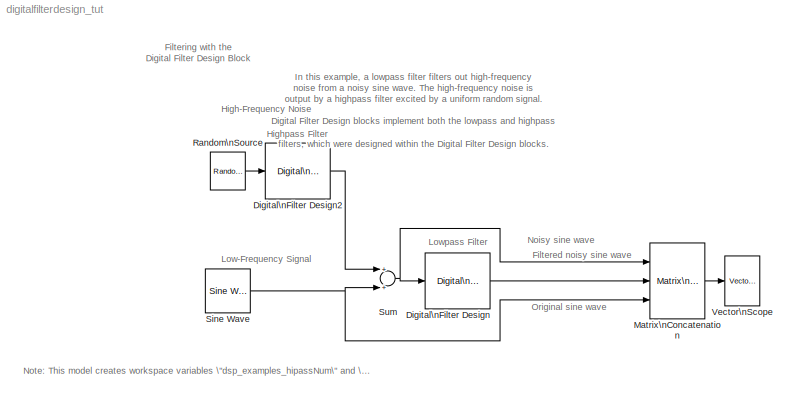
MODEL digitalfilterdesign_tut
KIND model
CONFIG AbsTol = auto
CONFIG FixedStep = auto
CONFIG MaxStep = auto
CONFIG MinStep = auto
CONFIG RelTol = 1e-3
CONFIG Solver = FixedStepDiscrete
CONFIG SolverMode = Auto
CONFIG StartTime = 0.0
CONFIG StopTime = 2
BLOCK [Reference] Digital\nFilter Design  REF=dsparch4/Digital\nFilter Design
  Ports = [1, 1]
  SourceBlock = dsparch4/Digital\nFilter Design
  SourceType = Digital Filter Design
  UserData = DataTag0
  UserDataPersistent = on
BLOCK [Reference] Digital\nFilter Design2  REF=dsparch4/Digital\nFilter Design
  Ports = [1, 1]
  SourceBlock = dsparch4/Digital\nFilter Design
  SourceType = Digital Filter Design
  UserData = DataTag1
  UserDataPersistent = on
BLOCK [Reference] Matrix\nConcatenation  REF=simulink/Math\nOperations/Matrix\nConcatenation
  Ports = [3, 1]
  SourceBlock = simulink/Math\nOperations/Matrix\nConcatenation
  SourceType = Matrix Concatenation
  catMethod = Horizontal
  numInports = 3
BLOCK [Reference] Random\nSource  REF=dspsrcs4/Random\nSource
  CltLength = 12
  DataType = Double
  Diagnostics = AllowInheritedTsInSrc
  Inherit = off
  Max = 4
  Mean = 0
  Min = 0
  NormMethod = Ziggurat
  OutComplex = Real
  Ports = [0, 1]
  RepMode = Not repeatable
  SampFrame = 50
  SampMode = Discrete
  SampTime = 1/1000
  Seed = 1
  SourceBlock = dspsrcs4/Random\nSource
  SourceType = Random Source
  SrcType = Uniform
  UserData = DataTag2
  UserDataPersistent = on
  Var = 1
BLOCK [Reference] Sine Wave  REF=dspsrcs4/Sine Wave
  Amplitude = 1
  CompMethod = Trigonometric fcn
  Frequency = 75
  OutComplex = Real
  Phase = 0
  Ports = [0, 1]
  ResetState = Restart at time zero
  SampleMode = Discrete
  SampleTime = 1/1000
  SamplesPerFrame = 50
  SourceBlock = dspsrcs4/Sine Wave
  SourceType = Sine Wave
  TableSize = Speed
  additionalParams = off
  dataType = double
  fracBitsMode = Best precision
  numFracBits = 14
  udDataType = sfix(16)
  wordLen = 16
BLOCK [Sum] Sum
  Ports = [2, 1]
BLOCK [Reference] Vector\nScope  REF=dspsnks4/Vector\nScope
  AxisGrid = on
  AxisLegend = on
  AxisProperties = off
  AxisZoom = off
  DisplayProperties = off
  Domain = Time
  FigPos = [386 364 548 328]
  FrameNumber = on
  HorizSpan = 1
  InheritXIncr = on
  LineColors = |[1 0 0]|[0 0 1]
  LineMarkers = None|diamond|*
  LineProperties = off
  LineStyles = -||None
  Memory = off
  OpenScopeAtSimStart = on
  OpenScopeImmediately = off
  Ports = [1]
  ScopeProperties = on
  SourceBlock = dspsnks4/Vector\nScope
  SourceType = Vector Scope
  XIncr = 1
  XLabel = Time
  XRange = [0...Fs/2]
  XUnits = Hertz
  YLabel = Amplitude
  YMax = 10
  YMin = -10
  YUnits = dB
ANNOTATION (root): \n\n\n\n\n\n\n
ANNOTATION (root): Filtered noisy sine wave
ANNOTATION (root): Filtering with the \nDigital Filter Design Block
ANNOTATION (root): High-Frequency Noise
ANNOTATION (root): Highpass Filter
ANNOTATION (root): In this example, a lowpass filter filters out high-frequency \nnoise from a noisy sine wave. The high-frequency noise is\noutput by a highpass filter excited by a uniform random signal.\n\nDigital Filter Design blocks implement both the lowpass and highpass \nfilters, which were designed within the Digital Filter Design blocks. \nThe Vector Scope's display shows the original sine wave, \nthe noisy...<+60ch>
ANNOTATION (root): Low-Frequency Signal
ANNOTATION (root): Lowpass Filter
ANNOTATION (root): Noisy sine wave
ANNOTATION (root): Note: This model creates workspace variables \"dsp_examples_hipassNum\" and \"dsp_examples_lopassNum\"
ANNOTATION (root): Original sine wave
LINE Digital\nFilter Design2:1 -> Sum:1
LINE Digital\nFilter Design:1 -> Matrix\nConcatenation:2
LINE Matrix\nConcatenation:1 -> Vector\nScope:1
LINE Random\nSource:1 -> Digital\nFilter Design2:1
NET Sine Wave:1 -> Matrix\nConcatenation:3, Sum:2
NET Sum:1 -> Digital\nFilter Design:1, Matrix\nConcatenation:1
note: NET lines group one-source signal fan-out (src -> all destinations, sorted); 1:1 wires keep LINE
